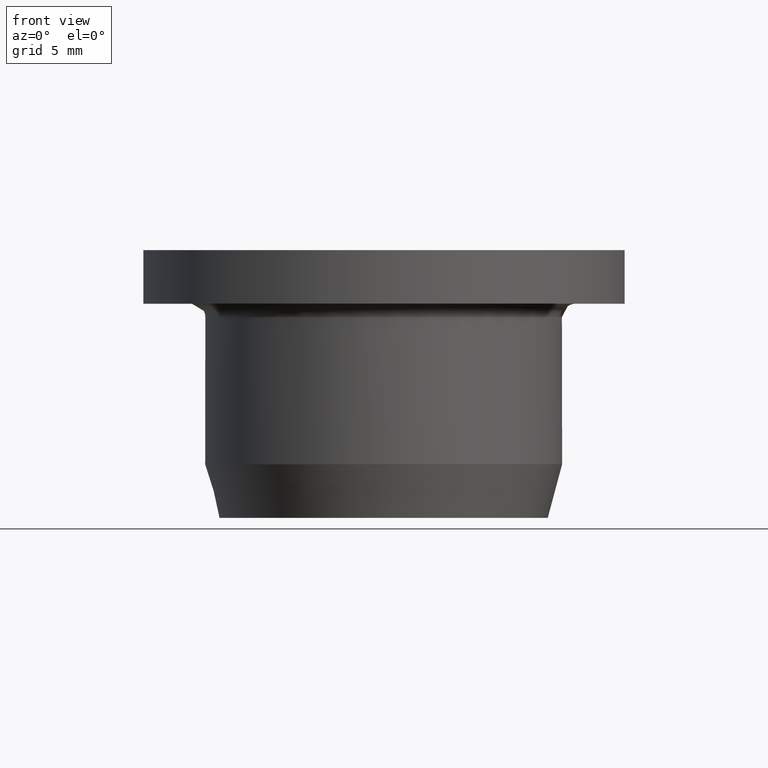
[diagram: clean part render]
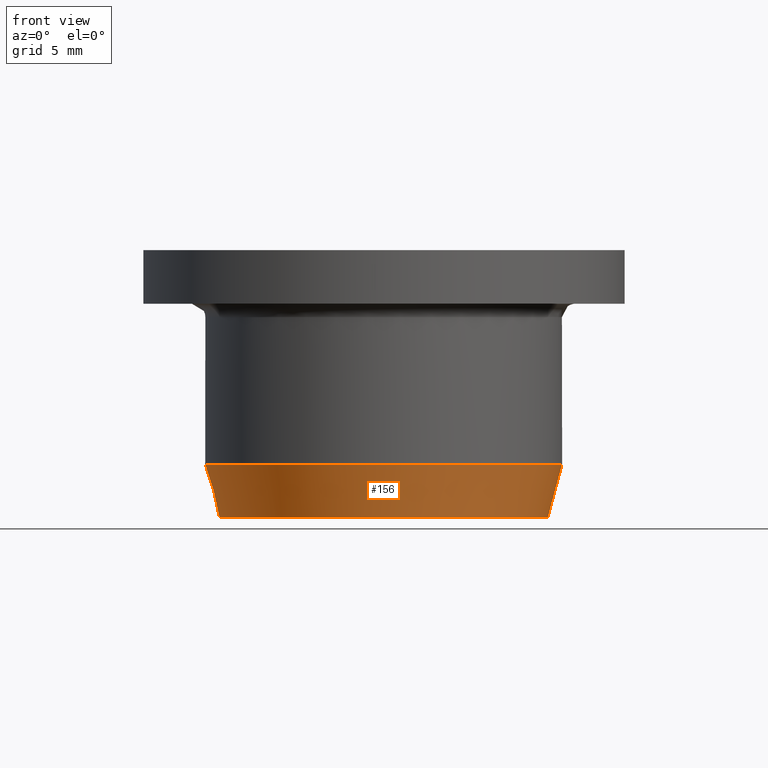
[diagram: same view with one face highlighted and labeled with its STEP entity id]
A machine part, front view. The second image highlights one B-rep face of the part: STEP entity #156.
In plain terms, the highlighted conical surface has half-angle 15 deg.
Its self-contained STEP definition (entity closure, byte-faithful):
#156=ADVANCED_FACE('',(#173,#174),#175,.T.);
#173=FACE_OUTER_BOUND('',#201,.T.);
#174=FACE_BOUND('',#202,.T.);
#175=CONICAL_SURFACE('',#203,0.00919615242270665,0.261799387799145);
#201=EDGE_LOOP('',(#234));
#202=EDGE_LOOP('',(#235));
#203=AXIS2_PLACEMENT_3D('',#236,#237,#238);
#234=ORIENTED_EDGE('',*,*,#267,.T.);
#235=ORIENTED_EDGE('',*,*,#270,.F.);
#236=CARTESIAN_POINT('',(0.0,0.0,-3.74113416384991E-020));
#237=DIRECTION('',(-0.0,6.12323399573677E-017,1.0));
#238=DIRECTION('',(0.0,-1.0,6.12323399573677E-017));
#267=EDGE_CURVE('',#279,#279,#280,.T.);
#270=EDGE_CURVE('',#285,#285,#286,.T.);
#279=VERTEX_POINT('',#297);
#280=CIRCLE('',#298,0.01);
#285=VERTEX_POINT('',#303);
#286=CIRCLE('',#304,0.00919615242270665);
#297=CARTESIAN_POINT('',(0.01,0.0,0.003));
#298=AXIS2_PLACEMENT_3D('',#318,#319,#320);
#303=CARTESIAN_POINT('',(0.00919615242270665,0.0,-3.74113416384991E-020));
#304=AXIS2_PLACEMENT_3D('',#327,#328,#329);
#318=CARTESIAN_POINT('',(0.0,0.0,0.003));
#319=DIRECTION('',(0.0,-6.12323399573677E-017,-1.0));
#320=DIRECTION('',(0.0,1.0,-6.12323399573677E-017));
#327=CARTESIAN_POINT('',(0.0,0.0,-3.74113416384991E-020));
#328=DIRECTION('',(0.0,-6.12323399573677E-017,-1.0));
#329=DIRECTION('',(0.0,1.0,-6.12323399573677E-017));